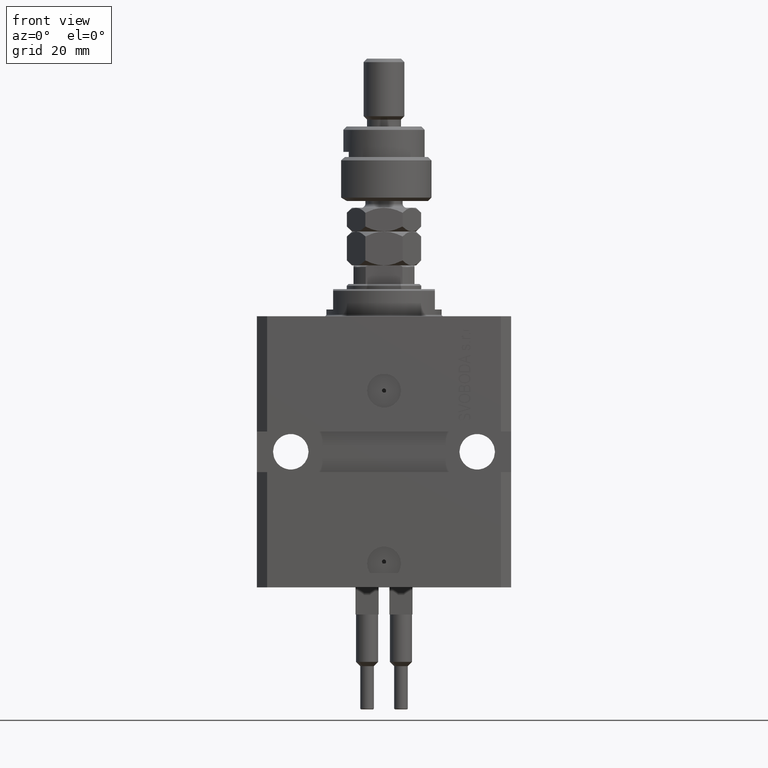
[diagram: clean part render]
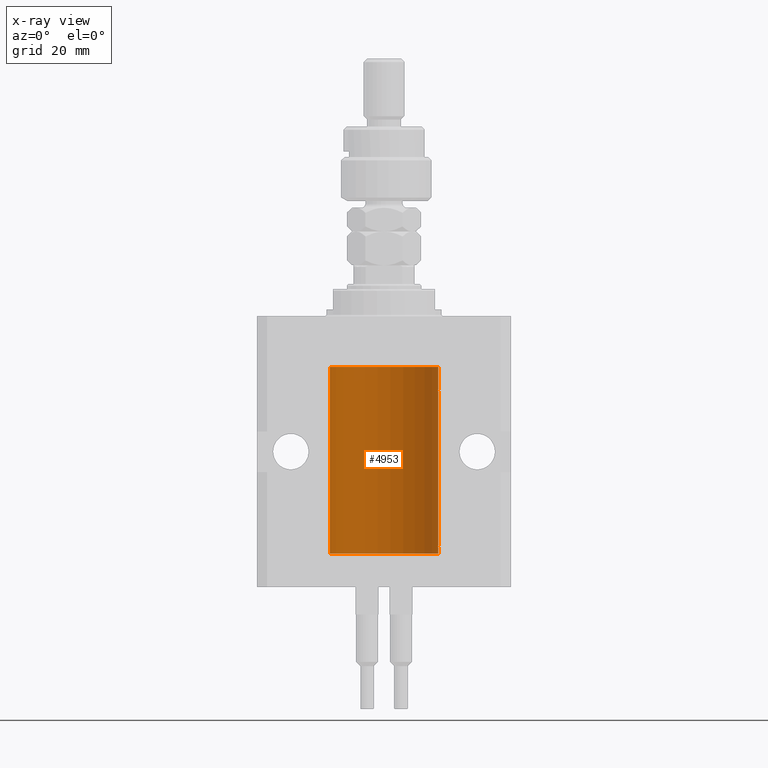
[diagram: x-ray — body ghosted, one internal face saturated and labeled with its STEP entity id]
A machine part, front view, then the same camera in x-ray: the body is ghosted and one INTERNAL B-rep face — a face not visible from any outside direction — is saturated and labeled: STEP entity #4953.
In plain terms, the highlighted cylindrical surface (partial cylindrical patch) has radius 16 mm, axis along (0, 0, 1).
Its self-contained STEP definition (entity closure, byte-faithful):
#898 = CARTESIAN_POINT ( 'NONE',  ( 16.00000000000000000, -1.835653844722709729E-15, -68.62500000000000000 ) ) ;
#1244 = CARTESIAN_POINT ( 'NONE',  ( 16.00000000000000000, -1.835653844722709729E-15, -68.62500000000000000 ) ) ;
#1312 = CYLINDRICAL_SURFACE ( 'NONE', #42332, 16.00000000000000000 ) ;
#1379 = VERTEX_POINT ( 'NONE', #42052 ) ;
#1840 = CIRCLE ( 'NONE', #18937, 16.00000000000000000 ) ;
#2170 = CARTESIAN_POINT ( 'NONE',  ( -16.00000000000000000, 1.959434878635765131E-15, -15.00000000000000000 ) ) ;
#2349 = VECTOR ( 'NONE', #46066, 1000.000000000000000 ) ;
#2996 = CARTESIAN_POINT ( 'NONE',  ( 15.98778830858070954, 0.6250000000080517815, -67.99999999999916156 ) ) ;
#3145 = CARTESIAN_POINT ( 'NONE',  ( 15.98778830858070954, 0.6250000000079481977, -21.99999999999914735 ) ) ;
#3194 = CARTESIAN_POINT ( 'NONE',  ( 16.00000000000000000, 0.000000000000000000, -70.09999999999999432 ) ) ;
#3220 = VERTEX_POINT ( 'NONE', #32832 ) ;
#3513 = CARTESIAN_POINT ( 'NONE',  ( 15.99228275317786441, 0.5002975944204781644, -67.61642014570176684 ) ) ;
#4067 = VERTEX_POINT ( 'NONE', #1244 ) ;
#4157 = FACE_OUTER_BOUND ( 'NONE', #25888, .T. ) ;
#4161 = CARTESIAN_POINT ( 'NONE',  ( 16.00000000000013145, 3.665532684555111376E-13, -21.37499999999658229 ) ) ;
#4291 = VERTEX_POINT ( 'NONE', #38242 ) ;
#4953 = ADVANCED_FACE ( 'NONE', ( #4157 ), #1312, .F. ) ;
#5337 = VERTEX_POINT ( 'NONE', #20095 ) ;
#6439 = LINE ( 'NONE', #17933, #19736 ) ;
#6750 = ORIENTED_EDGE ( 'NONE', *, *, #8681, .F. ) ;
#7014 = LINE ( 'NONE', #3194, #2349 ) ;
#8302 = CARTESIAN_POINT ( 'NONE',  ( 16.00000000000013145, 3.665532692826917502E-13, -67.37499999999657518 ) ) ;
#8556 = ORIENTED_EDGE ( 'NONE', *, *, #12858, .T. ) ;
#8681 = EDGE_CURVE ( 'NONE', #5337, #42925, #13483, .T. ) ;
#8879 = CARTESIAN_POINT ( 'NONE',  ( 16.00000000000000000, 0.000000000000000000, -15.00000000000000000 ) ) ;
#9063 = CARTESIAN_POINT ( 'NONE',  ( 15.98778830858070954, 0.6250000000080517815, -67.99999999999916156 ) ) ;
#9547 = CARTESIAN_POINT ( 'NONE',  ( 15.99548458234361448, 0.3844468804816183471, -68.49947786696357355 ) ) ;
#10177 = B_SPLINE_CURVE_WITH_KNOTS ( 'NONE', 3,
 ( #3145, #18983, #38374, #22541, #15394, #42681, #30968, #4161 ),
 .UNSPECIFIED., .F., .F.,
 ( 4, 2, 2, 4 ),
 ( 0.0009773326288699728335, 0.001221554802188567438, 0.001465776975507162259, 0.001954221322144344530 ),
 .UNSPECIFIED. ) ;
#10718 = EDGE_CURVE ( 'NONE', #21303, #5337, #1840, .T. ) ;
#10900 = CARTESIAN_POINT ( 'NONE',  ( 15.99999999999999645, 0.1631343969470158417, -67.37500000000021316 ) ) ;
#11142 = CARTESIAN_POINT ( 'NONE',  ( 15.98844460043491367, 0.6087869699337551399, -67.83657454967556077 ) ) ;
#11398 = CARTESIAN_POINT ( 'NONE',  ( 15.99711856062700477, 0.3252985083514284281, -67.44140297987711108 ) ) ;
#12858 = EDGE_CURVE ( 'NONE', #1379, #41017, #41904, .T. ) ;
#13483 = LINE ( 'NONE', #20902, #47369 ) ;
#13488 = DIRECTION ( 'NONE',  ( 1.000000000000000000, 0.000000000000000000, 0.000000000000000000 ) ) ;
#14437 = CARTESIAN_POINT ( 'NONE',  ( 15.98778830858101685, 0.6250000000001204592, -22.16311639173018833 ) ) ;
#14603 = DIRECTION ( 'NONE',  ( -0.000000000000000000, -0.000000000000000000, 1.000000000000000000 ) ) ;
#15394 = CARTESIAN_POINT ( 'NONE',  ( 15.99228275317787507, 0.5002975944204000047, -21.61642014570181303 ) ) ;
#17933 = CARTESIAN_POINT ( 'NONE',  ( 16.00000000000000000, 0.000000000000000000, -70.09999999999999432 ) ) ;
#18033 = CARTESIAN_POINT ( 'NONE',  ( 16.00000000000000000, 6.728408811789801767E-16, -22.62500000000000000 ) ) ;
#18874 = DIRECTION ( 'NONE',  ( 1.000000000000000000, 0.000000000000000000, 0.000000000000000000 ) ) ;
#18883 = EDGE_CURVE ( 'NONE', #21303, #4067, #7014, .T. ) ;
#18937 = AXIS2_PLACEMENT_3D ( 'NONE', #33461, #39265, #18874 ) ;
#18953 = EDGE_CURVE ( 'NONE', #41017, #4291, #27929, .T. ) ;
#18983 = CARTESIAN_POINT ( 'NONE',  ( 15.98778830858104172, 0.6249999999996183053, -21.91847885046212951 ) ) ;
#19517 = DIRECTION ( 'NONE',  ( -0.000000000000000000, -0.000000000000000000, 1.000000000000000000 ) ) ;
#19736 = VECTOR ( 'NONE', #14603, 1000.000000000000000 ) ;
#20095 = CARTESIAN_POINT ( 'NONE',  ( -16.00000000000000000, 1.959434878635765131E-15, -70.09999999999999432 ) ) ;
#20450 = ORIENTED_EDGE ( 'NONE', *, *, #10718, .F. ) ;
#20902 = CARTESIAN_POINT ( 'NONE',  ( -16.00000000000000000, 1.959434878635765131E-15, -70.09999999999999432 ) ) ;
#21303 = VERTEX_POINT ( 'NONE', #24799 ) ;
#21448 = VERTEX_POINT ( 'NONE', #32083 ) ;
#21980 = EDGE_CURVE ( 'NONE', #3220, #21448, #10177, .T. ) ;
#22403 = CARTESIAN_POINT ( 'NONE',  ( 16.00000000000013145, 3.665532692826917502E-13, -67.37499999999657518 ) ) ;
#22486 = ORIENTED_EDGE ( 'NONE', *, *, #40891, .T. ) ;
#22541 = CARTESIAN_POINT ( 'NONE',  ( 15.99070695999104252, 0.5461439696926363441, -21.68526802364053552 ) ) ;
#22619 = CARTESIAN_POINT ( 'NONE',  ( 15.98778830858070954, 0.6250000000079481977, -21.99999999999914735 ) ) ;
#23808 = DIRECTION ( 'NONE',  ( -0.000000000000000000, -0.000000000000000000, 1.000000000000000000 ) ) ;
#23936 = ORIENTED_EDGE ( 'NONE', *, *, #41906, .T. ) ;
#24507 = VERTEX_POINT ( 'NONE', #8879 ) ;
#24799 = CARTESIAN_POINT ( 'NONE',  ( 16.00000000000000000, 0.000000000000000000, -70.09999999999999432 ) ) ;
#25888 = EDGE_LOOP ( 'NONE', ( #6750, #20450, #32849, #23936, #8556, #48872, #22486, #27329, #29415, #35747 ) ) ;
#26009 = EDGE_CURVE ( 'NONE', #21448, #24507, #6439, .T. ) ;
#27329 = ORIENTED_EDGE ( 'NONE', *, *, #21980, .T. ) ;
#27929 = LINE ( 'NONE', #35828, #44704 ) ;
#28463 = CARTESIAN_POINT ( 'NONE',  ( 15.99934183755190986, 0.1636877470527013101, -68.60872690654070993 ) ) ;
#29415 = ORIENTED_EDGE ( 'NONE', *, *, #26009, .T. ) ;
#30849 = B_SPLINE_CURVE_WITH_KNOTS ( 'NONE', 3,
 ( #18033, #37167, #33325, #38188, #33579, #45317, #14437, #22619 ),
 .UNSPECIFIED., .F., .F.,
 ( 4, 2, 2, 4 ),
 ( 6.538667818360814107E-19, 0.0002443331572174917989, 0.0004886663144349829473, 0.0009773326288699728335 ),
 .UNSPECIFIED. ) ;
#30968 = CARTESIAN_POINT ( 'NONE',  ( 15.99999999999999289, 0.1631343969470015476, -21.37500000000020606 ) ) ;
#31069 = CARTESIAN_POINT ( 'NONE',  ( 15.98778830858103817, 0.6249999999997223332, -67.91847885046213662 ) ) ;
#32083 = CARTESIAN_POINT ( 'NONE',  ( 16.00000000000013145, 3.665532684555111376E-13, -21.37499999999658229 ) ) ;
#32832 = CARTESIAN_POINT ( 'NONE',  ( 15.98778830858070954, 0.6250000000079481977, -21.99999999999914735 ) ) ;
#32849 = ORIENTED_EDGE ( 'NONE', *, *, #18883, .T. ) ;
#33325 = CARTESIAN_POINT ( 'NONE',  ( 15.99934183755190986, 0.1636877470526783007, -22.60872690654068151 ) ) ;
#33461 = CARTESIAN_POINT ( 'NONE',  ( 0.000000000000000000, 0.000000000000000000, -70.09999999999999432 ) ) ;
#33579 = CARTESIAN_POINT ( 'NONE',  ( 15.99548458234361092, 0.3844468804815581731, -22.49947786696349894 ) ) ;
#35747 = ORIENTED_EDGE ( 'NONE', *, *, #49074, .T. ) ;
#35817 = CIRCLE ( 'NONE', #43970, 16.00000000000000000 ) ;
#35828 = CARTESIAN_POINT ( 'NONE',  ( 16.00000000000000000, 0.000000000000000000, -70.09999999999999432 ) ) ;
#36361 = CARTESIAN_POINT ( 'NONE',  ( 16.00000000000001066, 0.08261762387943044628, -68.62500000000000000 ) ) ;
#36869 = CARTESIAN_POINT ( 'NONE',  ( 15.99070366873610283, 0.5574063959867601170, -68.32639436837555991 ) ) ;
#37167 = CARTESIAN_POINT ( 'NONE',  ( 16.00000000000000711, 0.08261762387942241104, -22.62499999999997158 ) ) ;
#38188 = CARTESIAN_POINT ( 'NONE',  ( 15.99707608081894783, 0.3151028052309810534, -22.54594170697727762 ) ) ;
#38242 = CARTESIAN_POINT ( 'NONE',  ( 16.00000000000000000, 6.728408811789801767E-16, -22.62500000000000000 ) ) ;
#38374 = CARTESIAN_POINT ( 'NONE',  ( 15.98844460043492077, 0.6087869699336542206, -21.83657454967558564 ) ) ;
#39265 = DIRECTION ( 'NONE',  ( 0.000000000000000000, 0.000000000000000000, 1.000000000000000000 ) ) ;
#40891 = EDGE_CURVE ( 'NONE', #4291, #3220, #30849, .T. ) ;
#41017 = VERTEX_POINT ( 'NONE', #8302 ) ;
#41904 = B_SPLINE_CURVE_WITH_KNOTS ( 'NONE', 3,
 ( #2996, #31069, #11142, #42290, #3513, #11398, #10900, #22403 ),
 .UNSPECIFIED., .F., .F.,
 ( 4, 2, 2, 4 ),
 ( 0.0009773326288700682433, 0.001221554802188685399, 0.001465776975507302772, 0.001954221322144537518 ),
 .UNSPECIFIED. ) ;
#41906 = EDGE_CURVE ( 'NONE', #4067, #1379, #48586, .T. ) ;
#42052 = CARTESIAN_POINT ( 'NONE',  ( 15.98778830858070954, 0.6250000000080517815, -67.99999999999916156 ) ) ;
#42290 = CARTESIAN_POINT ( 'NONE',  ( 15.99070695999103542, 0.5461439696927204990, -67.68526802364047512 ) ) ;
#42332 = AXIS2_PLACEMENT_3D ( 'NONE', #42921, #23808, #46776 ) ;
#42681 = CARTESIAN_POINT ( 'NONE',  ( 15.99711856062700122, 0.3252985083513915687, -21.44140297987714661 ) ) ;
#42921 = CARTESIAN_POINT ( 'NONE',  ( 0.000000000000000000, 0.000000000000000000, -70.09999999999999432 ) ) ;
#42925 = VERTEX_POINT ( 'NONE', #2170 ) ;
#43970 = AXIS2_PLACEMENT_3D ( 'NONE', #48224, #47725, #13488 ) ;
#44017 = CARTESIAN_POINT ( 'NONE',  ( 15.99707608081895138, 0.3151028052310259620, -68.54594170697733091 ) ) ;
#44509 = CARTESIAN_POINT ( 'NONE',  ( 15.98778830858101685, 0.6250000000002223777, -68.16311639173024162 ) ) ;
#44704 = VECTOR ( 'NONE', #19517, 1000.000000000000000 ) ;
#44876 = DIRECTION ( 'NONE',  ( -0.000000000000000000, -0.000000000000000000, 1.000000000000000000 ) ) ;
#45317 = CARTESIAN_POINT ( 'NONE',  ( 15.99070366873610993, 0.5574063959866685236, -22.32639436837549951 ) ) ;
#46066 = DIRECTION ( 'NONE',  ( -0.000000000000000000, -0.000000000000000000, 1.000000000000000000 ) ) ;
#46776 = DIRECTION ( 'NONE',  ( 1.000000000000000000, 0.000000000000000000, 0.000000000000000000 ) ) ;
#47369 = VECTOR ( 'NONE', #44876, 1000.000000000000000 ) ;
#47725 = DIRECTION ( 'NONE',  ( 0.000000000000000000, 0.000000000000000000, 1.000000000000000000 ) ) ;
#48224 = CARTESIAN_POINT ( 'NONE',  ( 0.000000000000000000, 0.000000000000000000, -15.00000000000000000 ) ) ;
#48586 = B_SPLINE_CURVE_WITH_KNOTS ( 'NONE', 3,
 ( #898, #36361, #28463, #44017, #9547, #36869, #44509, #9063 ),
 .UNSPECIFIED., .F., .F.,
 ( 4, 2, 2, 4 ),
 ( 1.783888443149829469E-18, 0.0002443331572175257886, 0.0004886663144350497342, 0.0009773326288700682433 ),
 .UNSPECIFIED. ) ;
#48872 = ORIENTED_EDGE ( 'NONE', *, *, #18953, .T. ) ;
#49074 = EDGE_CURVE ( 'NONE', #24507, #42925, #35817, .T. ) ;